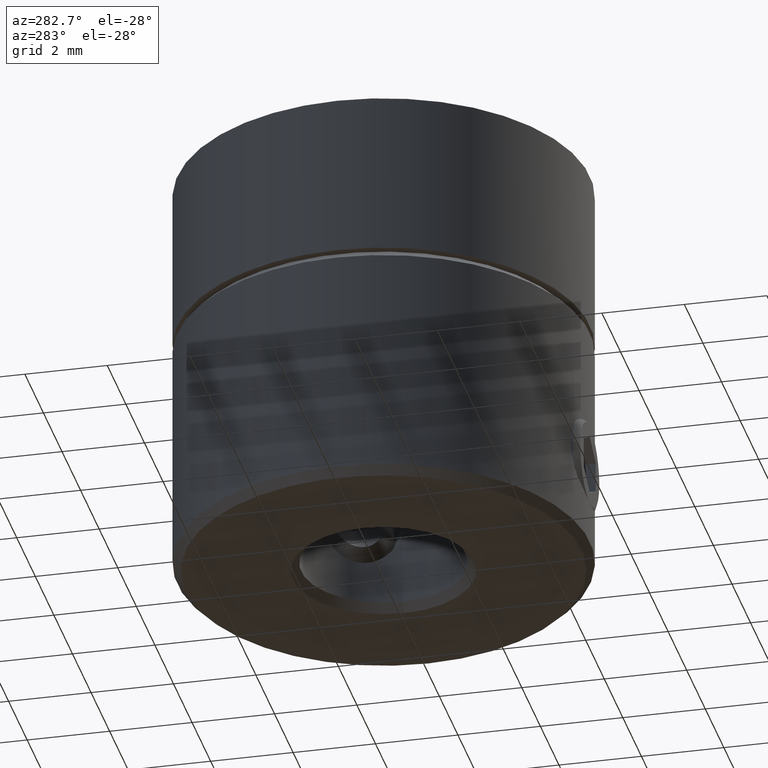
[diagram: clean part render]
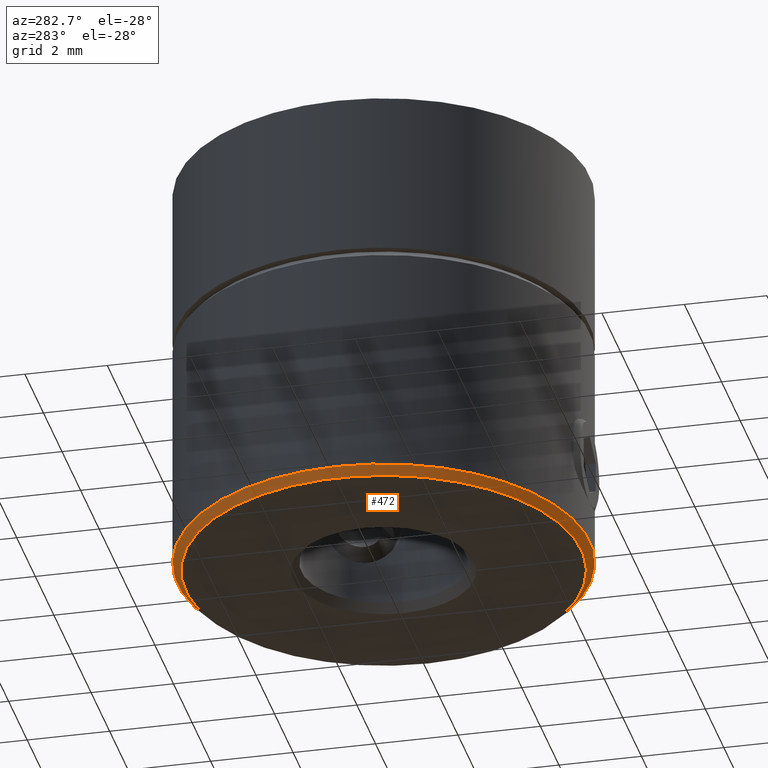
[diagram: same view with one face highlighted and labeled with its STEP entity id]
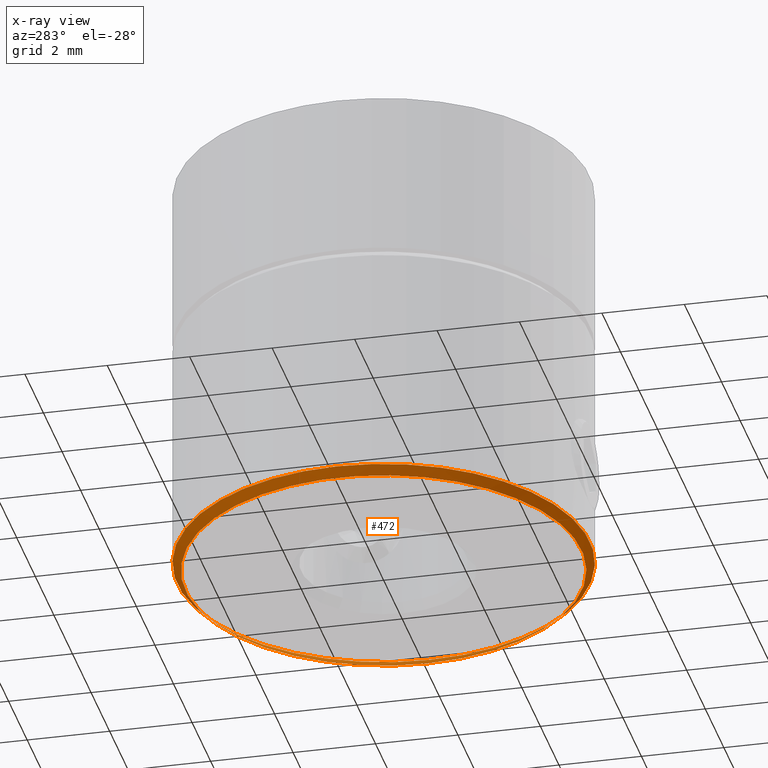
[diagram: x-ray of the same camera — body ghosted, the highlighted face saturated]
A machine part, auxiliary view. The second image highlights one B-rep face of the part: STEP entity #472.
The next image is the same camera in x-ray: the body ghosted, the highlighted face saturated — about 0% of this face is hidden behind the body in this view.
In plain terms, the highlighted conical surface has half-angle 45 deg.
Its self-contained STEP definition (entity closure, byte-faithful):
#472 = ADVANCED_FACE( '', ( #537, #538 ), #539, .T. );
#537 = FACE_BOUND( '', #622, .T. );
#538 = FACE_OUTER_BOUND( '', #623, .T. );
#539 = CONICAL_SURFACE( '', #624, 5.00000000000000, 0.785398163397448 );
#622 = EDGE_LOOP( '', ( #729 ) );
#623 = EDGE_LOOP( '', ( #730 ) );
#624 = AXIS2_PLACEMENT_3D( '', #731, #732, #733 );
#729 = ORIENTED_EDGE( '', *, *, #840, .F. );
#730 = ORIENTED_EDGE( '', *, *, #829, .F. );
#731 = CARTESIAN_POINT( '', ( 0.000000000000000, 0.000000000000000, -5.80000000000000 ) );
#732 = DIRECTION( '', ( -0.000000000000000, -0.000000000000000, 1.00000000000000 ) );
#733 = DIRECTION( '', ( 1.00000000000000, 0.000000000000000, 0.000000000000000 ) );
#829 = EDGE_CURVE( '', #869, #869, #870, .T. );
#840 = EDGE_CURVE( '', #891, #891, #892, .F. );
#869 = VERTEX_POINT( '', #939 );
#870 = CIRCLE( '', #940, 5.00000000000000 );
#891 = VERTEX_POINT( '', #1097 );
#892 = CIRCLE( '', #1098, 4.80000000000000 );
#939 = CARTESIAN_POINT( '', ( 5.00000000000000, 0.000000000000000, -5.80000000000000 ) );
#940 = AXIS2_PLACEMENT_3D( '', #1164, #1165, #1166 );
#1097 = CARTESIAN_POINT( '', ( 4.80000000000000, 0.000000000000000, -6.00000000000000 ) );
#1098 = AXIS2_PLACEMENT_3D( '', #1185, #1186, #1187 );
#1164 = CARTESIAN_POINT( '', ( 0.000000000000000, 0.000000000000000, -5.80000000000000 ) );
#1165 = DIRECTION( '', ( 0.000000000000000, -0.000000000000000, 1.00000000000000 ) );
#1166 = DIRECTION( '', ( 1.00000000000000, 0.000000000000000, 0.000000000000000 ) );
#1185 = CARTESIAN_POINT( '', ( 0.000000000000000, 0.000000000000000, -6.00000000000000 ) );
#1186 = DIRECTION( '', ( 0.000000000000000, 0.000000000000000, 1.00000000000000 ) );
#1187 = DIRECTION( '', ( 1.00000000000000, 0.000000000000000, -0.000000000000000 ) );